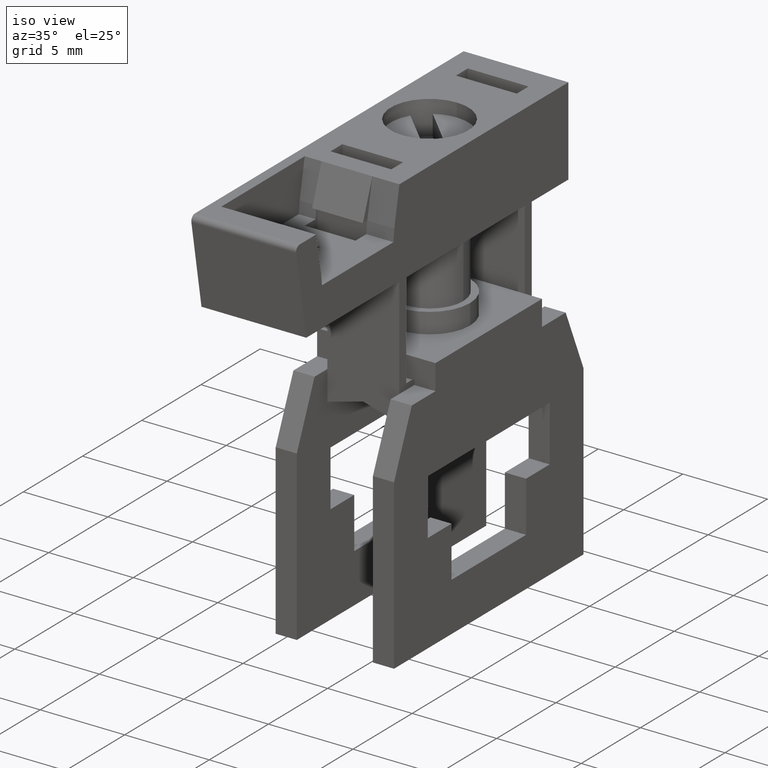
[diagram: clean part render]
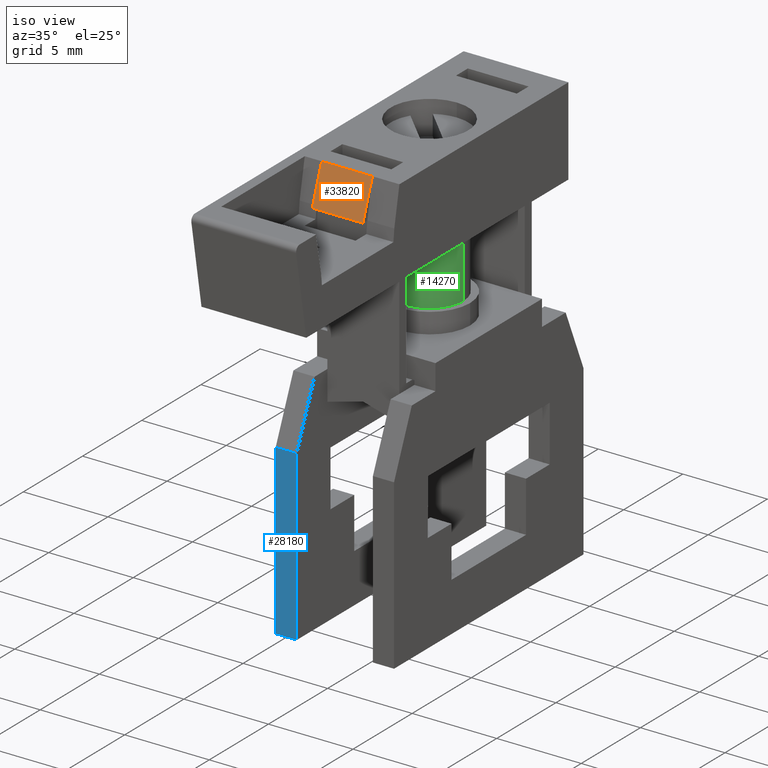
[diagram: same view with three faces highlighted in distinct colors, each labeled with its STEP entity id]
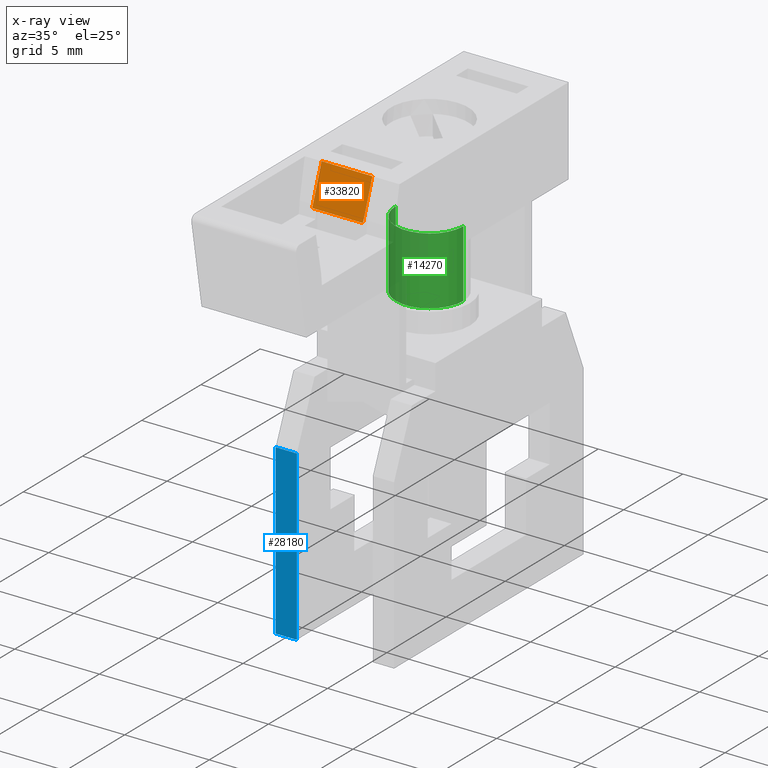
[diagram: x-ray of the same camera — body ghosted, the three highlighted faces saturated]
A machine part, iso view with three faces highlighted in distinct colors.
The next image is the same camera in x-ray (body ghosted, the three faces saturated) — at least one of them is partly hidden behind the body in this view.
Their STEP definitions:

[orange] entity #33820 — the highlighted planar face has unit normal (0, -0.9397, 0.342).
#1720=CARTESIAN_POINT('',(-5.,29.9,14.9740827327201));
#1730=VERTEX_POINT('',#1720);
#5490=CARTESIAN_POINT('',(-2.,29.9,14.9740827327201));
#5500=VERTEX_POINT('',#5490);
#5530=CARTESIAN_POINT('',(0.,29.9,14.9740827327201));
#5540=DIRECTION('',(1.,0.,-6.12323399573677E-17));
#5550=VECTOR('',#5540,1.);
#5560=LINE('',#5530,#5550);
#5570=EDGE_CURVE('',#1730,#5500,#5560,.T.);
#33330=CARTESIAN_POINT('',(-5.,27.7,15.7748172481057));
#33340=VERTEX_POINT('',#33330);
#33370=CARTESIAN_POINT('',(-0.400000000000001,27.7,15.7748172481057));
#33380=DIRECTION('',(-1.,0.,6.12323399573677E-17));
#33390=VECTOR('',#33380,1.);
#33400=LINE('',#33370,#33390);
#33410=CARTESIAN_POINT('',(-2.,27.7,15.7748172481057));
#33420=VERTEX_POINT('',#33410);
#33430=EDGE_CURVE('',#33420,#33340,#33400,.T.);
#33610=CARTESIAN_POINT('',(-0.400000000000001,29.2420201433257,
15.2135678152963));
#33620=DIRECTION('',(5.75395780113925E-17,0.342020143325669,
0.939692620785908));
#33630=DIRECTION('',(2.0942693688385E-17,-0.939692620785908,
0.342020143325669));
#33640=AXIS2_PLACEMENT_3D('',#33610,#33620,#33630);
#33650=PLANE('',#33640);
#33660=ORIENTED_EDGE('',*,*,#33430,.F.);
#33670=CARTESIAN_POINT('',(-5.,0.8,25.5656165498666));
#33680=DIRECTION('',(2.77555756156289E-17,-0.939692620785908,
0.342020143325669));
#33690=VECTOR('',#33680,1.);
#33700=LINE('',#33670,#33690);
#33710=EDGE_CURVE('',#1730,#33340,#33700,.T.);
#33720=ORIENTED_EDGE('',*,*,#33710,.T.);
#33730=ORIENTED_EDGE('',*,*,#5570,.F.);
#33740=CARTESIAN_POINT('',(-2.,0.8,25.5656165498666));
#33750=DIRECTION('',(2.77555756156289E-17,-0.939692620785908,
0.342020143325669));
#33760=VECTOR('',#33750,1.);
#33770=LINE('',#33740,#33760);
#33780=EDGE_CURVE('',#5500,#33420,#33770,.T.);
#33790=ORIENTED_EDGE('',*,*,#33780,.F.);
#33800=EDGE_LOOP('',(#33790,#33730,#33720,#33660));
#33810=FACE_OUTER_BOUND('',#33800,.T.);
#33820=ADVANCED_FACE('',(#33810),#33650,.T.);

[blue] entity #28180 — the highlighted planar face has unit normal (0, -1, -0).
#22770=CARTESIAN_POINT('',(0.,14.4662214512644,16.));
#22780=DIRECTION('',(1.,0.,0.));
#22790=VECTOR('',#22780,1.);
#22800=LINE('',#22770,#22790);
#23840=CARTESIAN_POINT('',(-5.75,-1.,16.));
#23850=DIRECTION('',(0.,1.,0.));
#23860=VECTOR('',#23850,1.);
#23870=LINE('',#23840,#23860);
#23880=CARTESIAN_POINT('',(-5.75,4.5,16.));
#23890=VERTEX_POINT('',#23880);
#23900=CARTESIAN_POINT('',(-5.75,14.4662214512644,16.));
#23910=VERTEX_POINT('',#23900);
#23920=EDGE_CURVE('',#23890,#23910,#23870,.T.);
#25520=CARTESIAN_POINT('',(-7.,4.5,16.));
#25530=VERTEX_POINT('',#25520);
#25930=CARTESIAN_POINT('',(-7.,14.4662214512644,16.));
#25940=VERTEX_POINT('',#25930);
#25970=CARTESIAN_POINT('',(-7.,-1.,16.));
#25980=DIRECTION('',(0.,-1.,0.));
#25990=VECTOR('',#25980,1.);
#26000=LINE('',#25970,#25990);
#26010=EDGE_CURVE('',#25940,#25530,#26000,.T.);
#27380=CARTESIAN_POINT('',(0.,4.5,16.));
#27390=DIRECTION('',(-1.,0.,0.));
#27400=VECTOR('',#27390,1.);
#27410=LINE('',#27380,#27400);
#27420=EDGE_CURVE('',#23890,#25530,#27410,.T.);
#28060=CARTESIAN_POINT('',(0.,4.5,16.));
#28070=DIRECTION('',(0.,0.,1.));
#28080=DIRECTION('',(1.,0.,0.));
#28090=AXIS2_PLACEMENT_3D('',#28060,#28070,#28080);
#28100=PLANE('',#28090);
#28110=ORIENTED_EDGE('',*,*,#26010,.T.);
#28120=EDGE_CURVE('',#25940,#23910,#22800,.T.);
#28130=ORIENTED_EDGE('',*,*,#28120,.F.);
#28140=ORIENTED_EDGE('',*,*,#23920,.T.);
#28150=ORIENTED_EDGE('',*,*,#27420,.F.);
#28160=EDGE_LOOP('',(#28150,#28140,#28130,#28110));
#28170=FACE_OUTER_BOUND('',#28160,.T.);
#28180=ADVANCED_FACE('',(#28170),#28100,.T.);

[green] entity #14270 — the highlighted cylindrical surface (partial cylindrical patch) has radius 2 mm, axis along (-0, -0, 1).
#12980=CARTESIAN_POINT('',(-3.5,24.7,8.));
#12990=DIRECTION('',(0.,1.,0.));
#13000=DIRECTION('',(1.,0.,0.));
#13010=AXIS2_PLACEMENT_3D('',#12980,#12990,#13000);
#13020=CIRCLE('',#13010,2.);
#13030=CARTESIAN_POINT('',(-1.5,24.7,8.));
#13040=VERTEX_POINT('',#13030);
#13050=CARTESIAN_POINT('',(-5.5,24.7,8.));
#13060=VERTEX_POINT('',#13050);
#13090=EDGE_CURVE('',#13060,#13040,#13020,.T.);
#13960=CARTESIAN_POINT('',(-3.5,19.05,8.));
#13970=DIRECTION('',(0.,1.,0.));
#13980=DIRECTION('',(1.,0.,0.));
#13990=AXIS2_PLACEMENT_3D('',#13960,#13970,#13980);
#14000=CYLINDRICAL_SURFACE('',#13990,2.);
#14010=CARTESIAN_POINT('',(-5.5,19.05,8.));
#14020=DIRECTION('',(0.,1.,0.));
#14030=VECTOR('',#14020,1.);
#14040=LINE('',#14010,#14030);
#14050=CARTESIAN_POINT('',(-5.5,20.7,8.));
#14060=VERTEX_POINT('',#14050);
#14070=EDGE_CURVE('',#14060,#13060,#14040,.T.);
#14080=ORIENTED_EDGE('',*,*,#14070,.F.);
#14090=ORIENTED_EDGE('',*,*,#13090,.F.);
#14100=CARTESIAN_POINT('',(-1.5,19.05,8.));
#14110=DIRECTION('',(0.,1.,0.));
#14120=VECTOR('',#14110,1.);
#14130=LINE('',#14100,#14120);
#14140=CARTESIAN_POINT('',(-1.5,20.7,8.));
#14150=VERTEX_POINT('',#14140);
#14160=EDGE_CURVE('',#14150,#13040,#14130,.T.);
#14170=ORIENTED_EDGE('',*,*,#14160,.T.);
#14180=CARTESIAN_POINT('',(-3.5,20.7,8.));
#14190=DIRECTION('',(0.,1.,0.));
#14200=DIRECTION('',(1.,0.,0.));
#14210=AXIS2_PLACEMENT_3D('',#14180,#14190,#14200);
#14220=CIRCLE('',#14210,2.);
#14230=EDGE_CURVE('',#14060,#14150,#14220,.T.);
#14240=ORIENTED_EDGE('',*,*,#14230,.T.);
#14250=EDGE_LOOP('',(#14240,#14170,#14090,#14080));
#14260=FACE_OUTER_BOUND('',#14250,.T.);
#14270=ADVANCED_FACE('',(#14260),#14000,.T.);